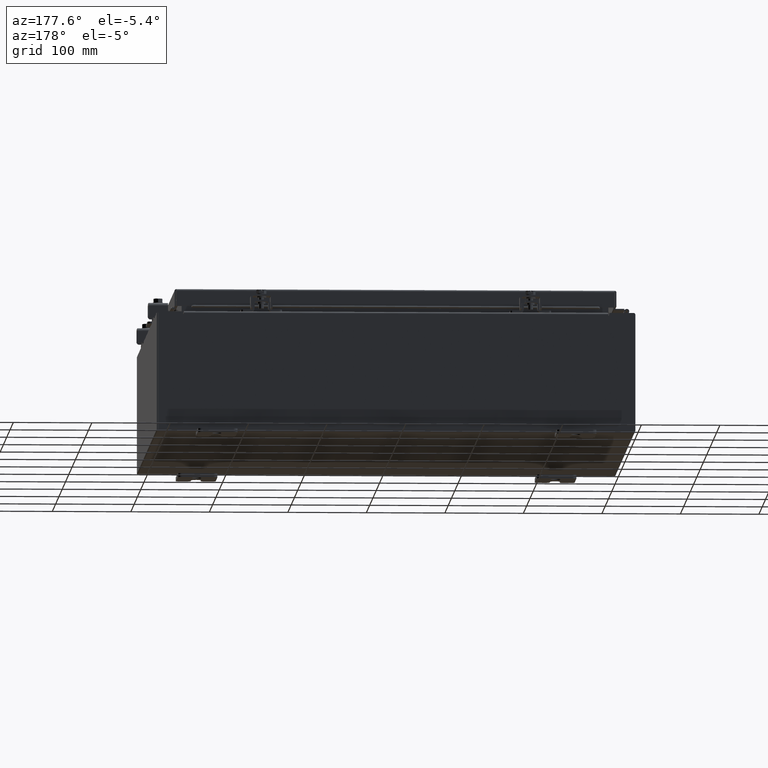
[diagram: clean part render]
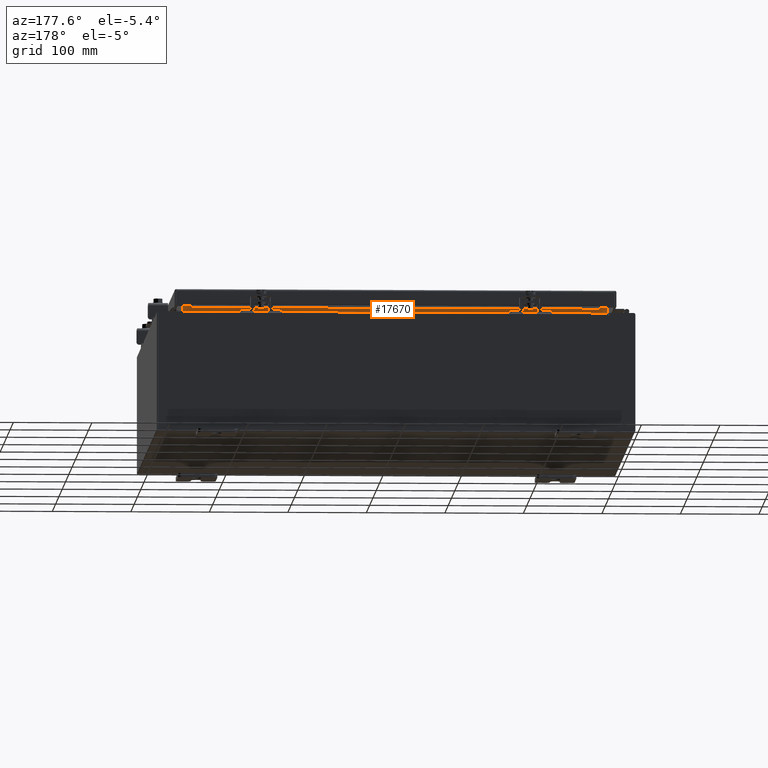
[diagram: same view with one face highlighted and labeled with its STEP entity id]
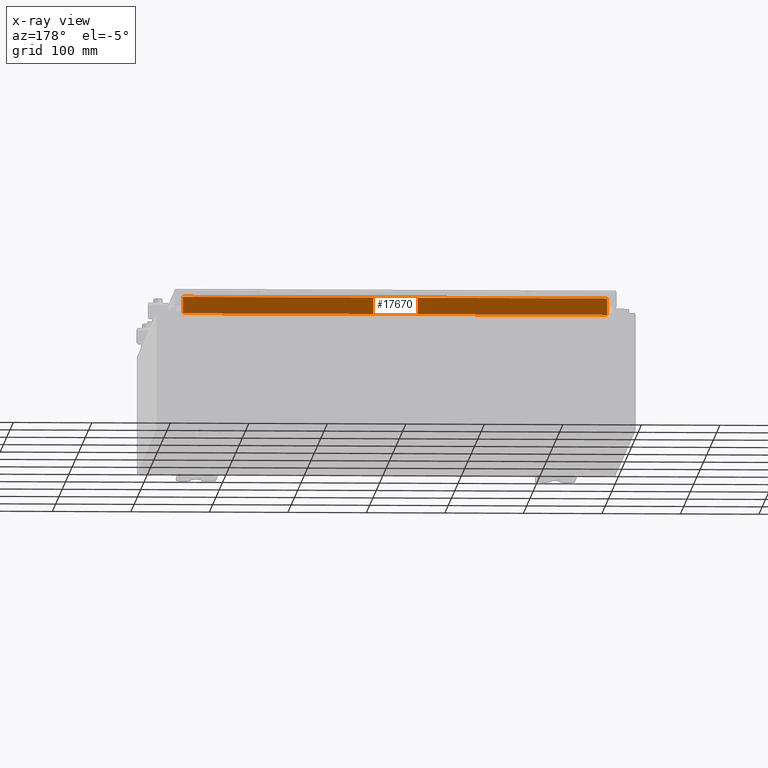
[diagram: x-ray of the same camera — body ghosted, the highlighted face saturated]
A machine part, auxiliary view. The second image highlights one B-rep face of the part: STEP entity #17670.
The next image is the same camera in x-ray: the body ghosted, the highlighted face saturated — about 0% of this face is hidden behind the body in this view.
In plain terms, the highlighted planar face has unit normal (0, 1, 0).
Its self-contained STEP definition (entity closure, byte-faithful):
#215 = DIRECTION ( 'NONE',  ( 0.0000000000000000000, -0.0000000000000000000, 1.000000000000000000 ) ) ;
#352 = DIRECTION ( 'NONE',  ( 1.000000000000000000, 0.0000000000000000000, -5.136404305013091600E-017 ) ) ;
#2610 = LINE ( 'NONE', #26188, #28860 ) ;
#2665 = PLANE ( 'NONE',  #3089 ) ;
#2893 = CARTESIAN_POINT ( 'NONE',  ( -10.63720000000000200, -1.300299999999999300, 3.013000000000005700 ) ) ;
#2968 = CARTESIAN_POINT ( 'NONE',  ( 10.63720000000000400, -1.300299999999999300, 3.013000000000004800 ) ) ;
#3024 = VECTOR ( 'NONE', #25326, 39.37007874015748100 ) ;
#3089 = AXIS2_PLACEMENT_3D ( 'NONE', #12851, #15400, #215 ) ;
#4900 = ORIENTED_EDGE ( 'NONE', *, *, #32013, .F. ) ;
#5224 = ORIENTED_EDGE ( 'NONE', *, *, #16091, .F. ) ;
#5713 = VERTEX_POINT ( 'NONE', #2968 ) ;
#8307 = DIRECTION ( 'NONE',  ( -0.0000000000000000000, -0.0000000000000000000, -1.000000000000000000 ) ) ;
#8405 = VERTEX_POINT ( 'NONE', #17278 ) ;
#8986 = CARTESIAN_POINT ( 'NONE',  ( -10.63720000000000200, -1.300299999999999300, 3.837600000000004600 ) ) ;
#9768 = LINE ( 'NONE', #32893, #3024 ) ;
#12372 = CARTESIAN_POINT ( 'NONE',  ( -10.63720000000000400, -1.300299999999999300, 3.013000000000004800 ) ) ;
#12851 = CARTESIAN_POINT ( 'NONE',  ( 0.0000000000000000000, -1.300299999999999300, 0.0000000000000000000 ) ) ;
#14791 = ORIENTED_EDGE ( 'NONE', *, *, #15380, .F. ) ;
#15380 = EDGE_CURVE ( 'NONE', #32399, #5713, #16315, .T. ) ;
#15400 = DIRECTION ( 'NONE',  ( 0.0000000000000000000, 1.000000000000000000, 0.0000000000000000000 ) ) ;
#15855 = VECTOR ( 'NONE', #8307, 39.37007874015748100 ) ;
#16091 = EDGE_CURVE ( 'NONE', #31513, #32399, #22651, .T. ) ;
#16315 = LINE ( 'NONE', #2893, #29088 ) ;
#17278 = CARTESIAN_POINT ( 'NONE',  ( 10.63720000000000200, -1.300299999999999300, 3.837600000000004600 ) ) ;
#17670 = ADVANCED_FACE ( 'NONE', ( #25349 ), #2665, .T. ) ;
#18211 = ORIENTED_EDGE ( 'NONE', *, *, #31782, .F. ) ;
#18618 = DIRECTION ( 'NONE',  ( -0.0000000000000000000, -0.0000000000000000000, 1.000000000000000000 ) ) ;
#22651 = LINE ( 'NONE', #26087, #15855 ) ;
#25326 = DIRECTION ( 'NONE',  ( -1.000000000000000000, -0.0000000000000000000, -0.0000000000000000000 ) ) ;
#25349 = FACE_OUTER_BOUND ( 'NONE', #30363, .T. ) ;
#26087 = CARTESIAN_POINT ( 'NONE',  ( -10.63720000000000200, -1.300299999999999300, 3.000000000000005800 ) ) ;
#26188 = CARTESIAN_POINT ( 'NONE',  ( 10.63720000000000200, -1.300299999999999300, 3.925300000000004900 ) ) ;
#28860 = VECTOR ( 'NONE', #18618, 39.37007874015748100 ) ;
#29088 = VECTOR ( 'NONE', #352, 39.37007874015748100 ) ;
#30363 = EDGE_LOOP ( 'NONE', ( #5224, #18211, #4900, #14791 ) ) ;
#31513 = VERTEX_POINT ( 'NONE', #8986 ) ;
#31782 = EDGE_CURVE ( 'NONE', #8405, #31513, #9768, .T. ) ;
#32013 = EDGE_CURVE ( 'NONE', #5713, #8405, #2610, .T. ) ;
#32399 = VERTEX_POINT ( 'NONE', #12372 ) ;
#32893 = CARTESIAN_POINT ( 'NONE',  ( 10.63720000000000200, -1.300299999999999300, 3.837600000000004600 ) ) ;